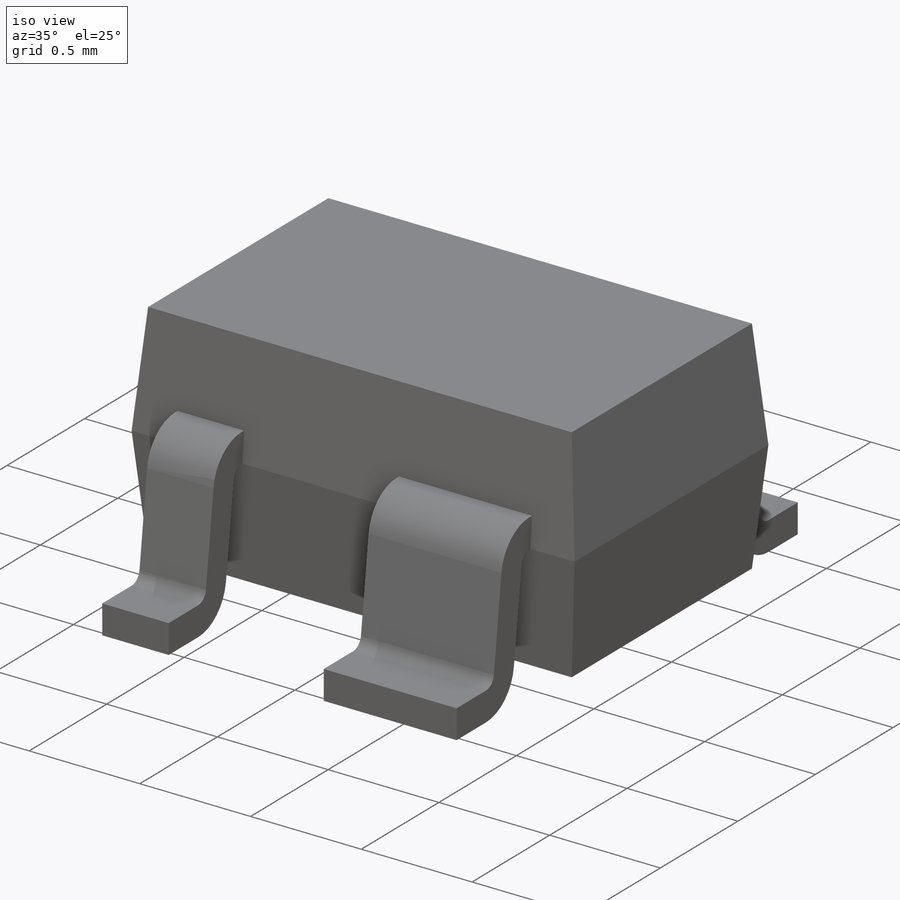
[diagram: iso view]
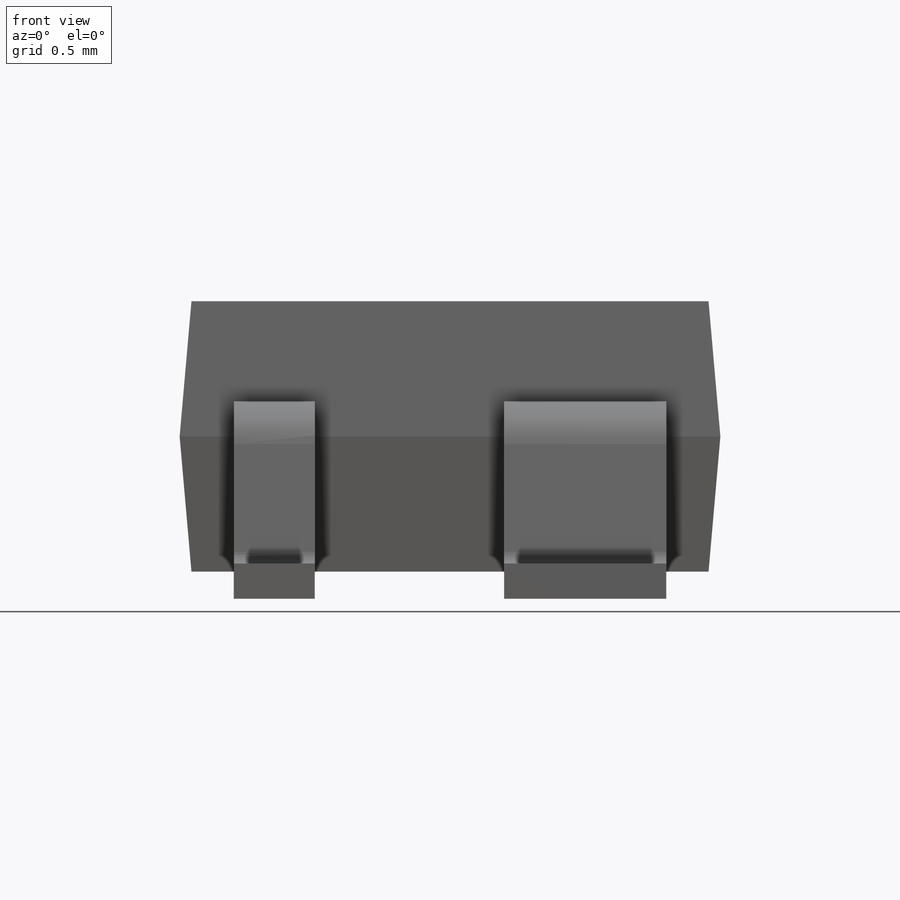
[diagram: front view]
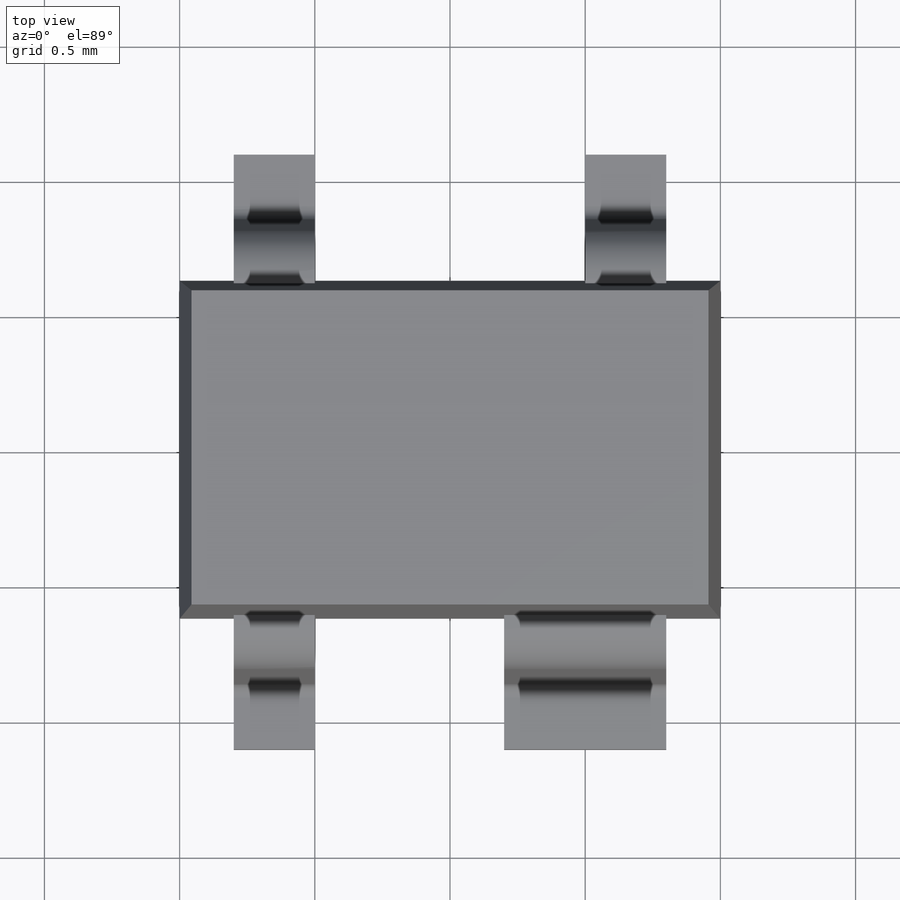
[diagram: top view]
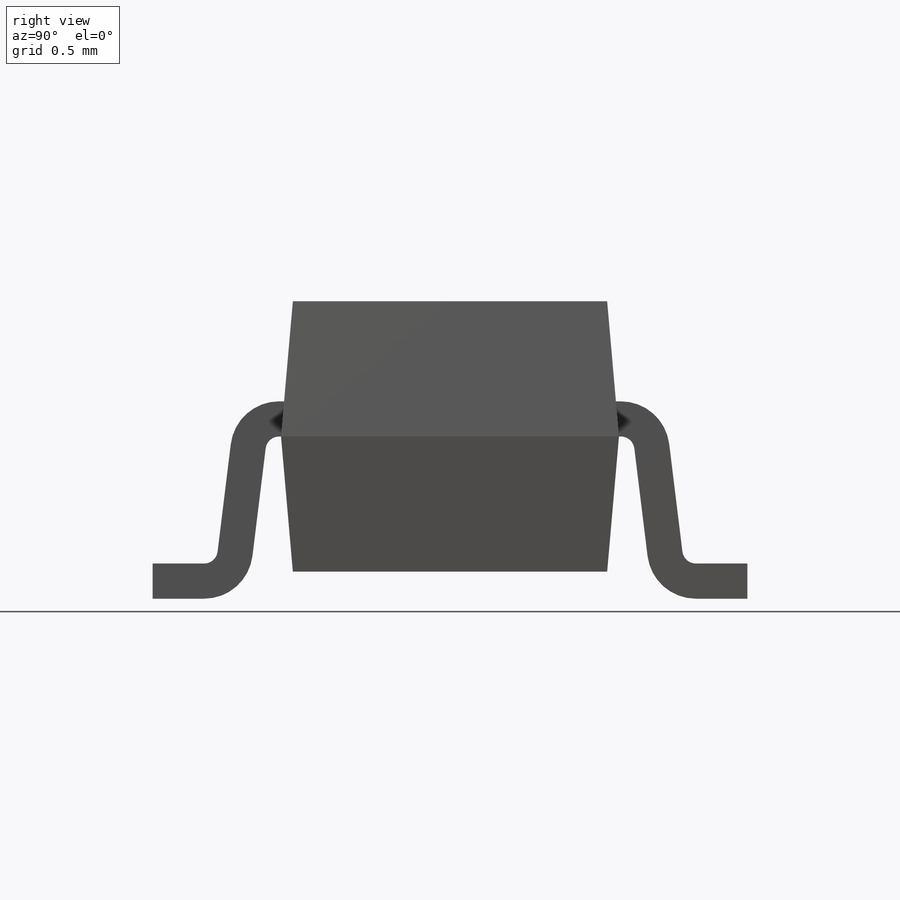
[diagram: right view]
SOLIDWORKS PART (.sldprt)
format: sldprt  version: not decoded by parser v0  size: 269,824 bytes
history: native  units: mm
features: sketch x4, extrude x3, fillet x2, material x1, mirror x1, plane x1 (+12 scaffold rows collapsed)
feature tree (24):
  scaffold x12  (default folders/planes/origin — collapsed)
  material  "Material <not specified>"
  sketch  "Sketch1"  dims[D1=1.25mm D2=2.0mm]
  extrude  "Extrude1"  Depth=0.5mm
  sketch  "Sketch2"  dims[c1.D1=0.13mm c1.D2=0.13mm c1.D3=0.13mm c1.D4=~0.304747mm c2.D4=97.0deg c2.D5=2.2mm c2.D6=0.35mm c2.D7=0.1mm]
  extrude  "Extrude2"  Depth=0.3mm
  extrude  "Extrude3"  [1 undecoded]
  sketch  "Sketch2<3>"  dims[D1=0.15mm D2=0.15mm D19=0.65mm]
  mirror  "Mirror1"
  fillet  "Fillet1"  Radius=0.05mm
  fillet  "Fillet2"  Radius=0.18mm
  plane  "Board Plane"  Offset=0.6mm
  sketch  "Component_Outline"
decode coverage: 7 of 10 modeling features carry decoded parameters
note: ~ marks probable driven/reference dimensions
note: 1 parameter value undecoded
note: suppression state not decoded; provenance and decode notes live in map.json
